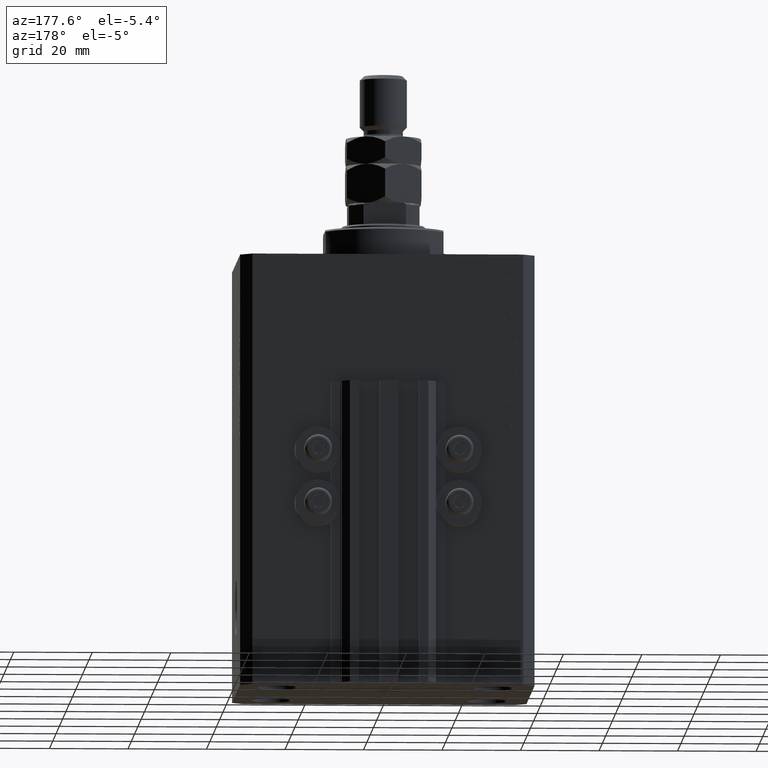
[diagram: clean part render]
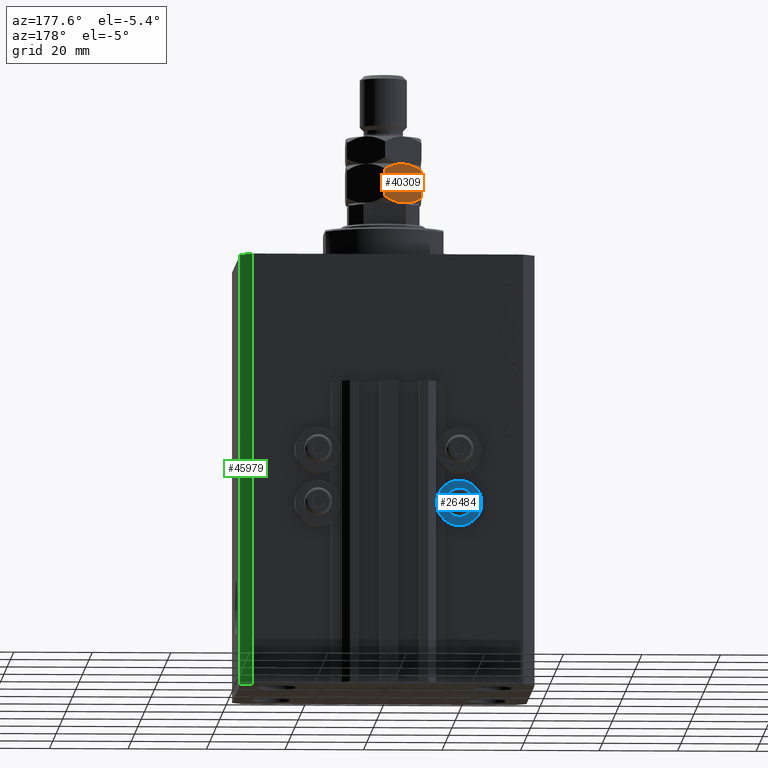
[diagram: same view with three faces highlighted in distinct colors, each labeled with its STEP entity id]
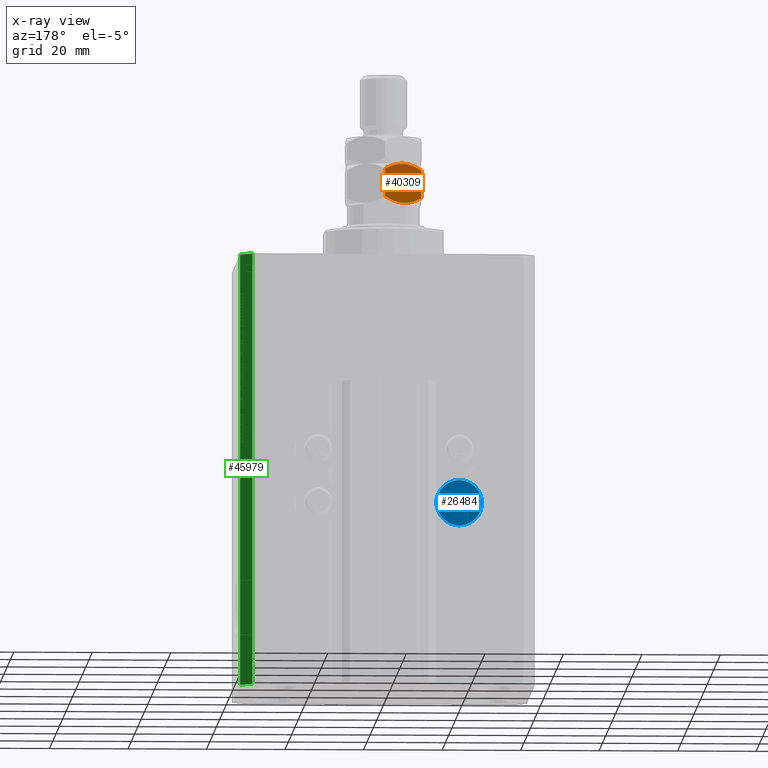
[diagram: x-ray of the same camera — body ghosted, the three highlighted faces saturated]
A machine part, auxiliary view with three faces highlighted in distinct colors.
The next image is the same camera in x-ray (body ghosted, the three faces saturated) — at least one of them is partly hidden behind the body in this view.
Their STEP definitions:

[orange] entity #40309 — the highlighted planar face has unit normal (0.5, -0.866, 0).
#2460 = CARTESIAN_POINT ( 'NONE',  ( -9.500000000000000000, 5.484827557301450440, 1.469655114602887114 ) ) ;
#3102 = CARTESIAN_POINT ( 'NONE',  ( -2.690254945947323506, 9.416435697371474234, 9.716537861568806278 ) ) ;
#3163 = CARTESIAN_POINT ( 'NONE',  ( -3.412354640325339130E-17, 10.96965511460288667, 8.530344885397118659 ) ) ;
#3341 = CARTESIAN_POINT ( 'NONE',  ( -4.333978297711722938, 8.467431577757031036, 9.999999999999998224 ) ) ;
#4573 = VERTEX_POINT ( 'NONE', #45017 ) ;
#5088 = B_SPLINE_CURVE_WITH_KNOTS ( 'NONE', 3,
 ( #36673, #36925, #48022, #3102, #14195, #29273, #3341, #44315 ),
 .UNSPECIFIED., .F., .F.,
 ( 4, 2, 2, 4 ),
 ( 2.544312669947217931E-07, 0.002843014744722341131, 0.004264394901450013070, 0.005685775058177684575 ),
 .UNSPECIFIED. ) ;
#6653 = CARTESIAN_POINT ( 'NONE',  ( -9.500000000000000000, 5.484827557301450440, 8.530344885397113330 ) ) ;
#7068 = CARTESIAN_POINT ( 'NONE',  ( -1.509821400858455398, 10.09795932238899852, 0.6716369694512650534 ) ) ;
#7379 = CARTESIAN_POINT ( 'NONE',  ( -7.990178599141542826, 6.356523349515339483, 9.328363030548731061 ) ) ;
#8091 = VECTOR ( 'NONE', #48327, 1000.000000000000000 ) ;
#8727 = EDGE_CURVE ( 'NONE', #12583, #19426, #5088, .T. ) ;
#9138 = CARTESIAN_POINT ( 'NONE',  ( -4.749999999999995559, 8.227241335952170331, 0.000000000000000000 ) ) ;
#9176 = LINE ( 'NONE', #17730, #8091 ) ;
#9381 = DIRECTION ( 'NONE',  ( -0.000000000000000000, -0.000000000000000000, -1.000000000000000000 ) ) ;
#9828 = ORIENTED_EDGE ( 'NONE', *, *, #41394, .F. ) ;
#10095 = CARTESIAN_POINT ( 'NONE',  ( -5.588267949974988547, 7.743267109381076096, 0.03770576873300184734 ) ) ;
#12146 = FACE_OUTER_BOUND ( 'NONE', #45880, .T. ) ;
#12583 = VERTEX_POINT ( 'NONE', #3163 ) ;
#13374 = CARTESIAN_POINT ( 'NONE',  ( 7.043584025308272669E-16, 10.96965511460288667, 1.469655114602882007 ) ) ;
#13794 = ORIENTED_EDGE ( 'NONE', *, *, #37583, .F. ) ;
#14195 = CARTESIAN_POINT ( 'NONE',  ( -3.091726368128223879, 9.184646063703393537, 9.820258145287965590 ) ) ;
#14386 = VERTEX_POINT ( 'NONE', #45985 ) ;
#14774 = CARTESIAN_POINT ( 'NONE',  ( -4.749999999999993783, 8.227241335952166779, 10.00000000000000000 ) ) ;
#15420 = B_SPLINE_CURVE_WITH_KNOTS ( 'NONE', 3,
 ( #2460, #17498, #47618, #28875, #43918, #10095, #25162, #21465 ),
 .UNSPECIFIED., .F., .F.,
 ( 4, 2, 2, 4 ),
 ( 2.544312669946945821E-07, 0.002843014744722347636, 0.004264394901450021744, 0.005685775058177695851 ),
 .UNSPECIFIED. ) ;
#16087 = DIRECTION ( 'NONE',  ( 0.4999999999999995004, -0.8660254037844390407, 0.000000000000000000 ) ) ;
#17498 = CARTESIAN_POINT ( 'NONE',  ( -8.755131854751338594, 5.914877381471542961, 1.039605290432796147 ) ) ;
#17730 = CARTESIAN_POINT ( 'NONE',  ( 0.000000000000000000, 10.96965511460288667, 10.00000000000000000 ) ) ;
#18176 = CARTESIAN_POINT ( 'NONE',  ( -3.923784602134044341, 8.704257018318687145, 8.233160247311796338E-16 ) ) ;
#19426 = VERTEX_POINT ( 'NONE', #43051 ) ;
#19902 = AXIS2_PLACEMENT_3D ( 'NONE', #35119, #16087, #45958 ) ;
#20254 = LINE ( 'NONE', #28635, #28651 ) ;
#21194 = B_SPLINE_CURVE_WITH_KNOTS ( 'NONE', 3,
 ( #14774, #48830, #40473, #7379, #48355, #26137 ),
 .UNSPECIFIED., .F., .F.,
 ( 4, 2, 4 ),
 ( 0.005685775058177684575, 0.008508623398180318459, 0.01133147173818295321 ),
 .UNSPECIFIED. ) ;
#21465 = CARTESIAN_POINT ( 'NONE',  ( -4.749999999999995559, 8.227241335952170331, 0.000000000000000000 ) ) ;
#21648 = CARTESIAN_POINT ( 'NONE',  ( 7.043584025308272669E-16, 10.96965511460288667, 1.469655114602882007 ) ) ;
#21693 = VERTEX_POINT ( 'NONE', #13374 ) ;
#24652 = ORIENTED_EDGE ( 'NONE', *, *, #44057, .F. ) ;
#25162 = CARTESIAN_POINT ( 'NONE',  ( -5.166021702288269957, 7.987051094147307850, 9.131015171401357655E-16 ) ) ;
#26137 = CARTESIAN_POINT ( 'NONE',  ( -9.500000000000000000, 5.484827557301450440, 8.530344885397113330 ) ) ;
#27743 = VERTEX_POINT ( 'NONE', #6653 ) ;
#28635 = CARTESIAN_POINT ( 'NONE',  ( -9.500000000000000000, 5.484827557301449552, 10.00000000000000000 ) ) ;
#28651 = VECTOR ( 'NONE', #9381, 1000.000000000000000 ) ;
#28875 = CARTESIAN_POINT ( 'NONE',  ( -6.809745054052670277, 7.038046974532860212, 0.2834621384311906689 ) ) ;
#29273 = CARTESIAN_POINT ( 'NONE',  ( -3.911732050025008789, 8.711215562523269895, 9.962294231267003752 ) ) ;
#33248 = CARTESIAN_POINT ( 'NONE',  ( -3.111617971331824162, 9.173161641239182984, 0.1458756157754679816 ) ) ;
#35119 = CARTESIAN_POINT ( 'NONE',  ( 0.000000000000000000, 10.96965511460288667, 10.00000000000000000 ) ) ;
#35737 = ORIENTED_EDGE ( 'NONE', *, *, #36526, .F. ) ;
#36526 = EDGE_CURVE ( 'NONE', #14386, #21693, #46815, .T. ) ;
#36673 = CARTESIAN_POINT ( 'NONE',  ( -3.412354640325339130E-17, 10.96965511460288667, 8.530344885397118659 ) ) ;
#36925 = CARTESIAN_POINT ( 'NONE',  ( -0.7448681452486597410, 10.53960529043279770, 8.960394709567207627 ) ) ;
#37583 = EDGE_CURVE ( 'NONE', #19426, #27743, #21194, .T. ) ;
#38081 = PLANE ( 'NONE',  #19902 ) ;
#40309 = ADVANCED_FACE ( 'NONE', ( #12146 ), #38081, .F. ) ;
#40425 = EDGE_CURVE ( 'NONE', #12583, #21693, #9176, .T. ) ;
#40473 = CARTESIAN_POINT ( 'NONE',  ( -6.388382028668171841, 7.281321030665156790, 9.854124384224531852 ) ) ;
#41394 = EDGE_CURVE ( 'NONE', #27743, #4573, #20254, .T. ) ;
#43051 = CARTESIAN_POINT ( 'NONE',  ( -4.749999999999993783, 8.227241335952166779, 10.00000000000000000 ) ) ;
#43200 = CARTESIAN_POINT ( 'NONE',  ( -0.7440058743609621050, 10.54010312276192174, 1.040103122761827148 ) ) ;
#43290 = ORIENTED_EDGE ( 'NONE', *, *, #40425, .T. ) ;
#43918 = CARTESIAN_POINT ( 'NONE',  ( -6.408273631871772125, 7.269836608200945349, 0.1797418547120365750 ) ) ;
#44057 = EDGE_CURVE ( 'NONE', #4573, #14386, #15420, .T. ) ;
#44315 = CARTESIAN_POINT ( 'NONE',  ( -4.749999999999993783, 8.227241335952166779, 10.00000000000000000 ) ) ;
#45017 = CARTESIAN_POINT ( 'NONE',  ( -9.500000000000000000, 5.484827557301450440, 1.469655114602887114 ) ) ;
#45880 = EDGE_LOOP ( 'NONE', ( #24652, #9828, #13794, #47909, #43290, #35737 ) ) ;
#45958 = DIRECTION ( 'NONE',  ( 0.8660254037844389297, 0.4999999999999994449, 0.000000000000000000 ) ) ;
#45985 = CARTESIAN_POINT ( 'NONE',  ( -4.749999999999995559, 8.227241335952170331, 0.000000000000000000 ) ) ;
#46815 = B_SPLINE_CURVE_WITH_KNOTS ( 'NONE', 3,
 ( #9138, #18176, #33248, #7068, #43200, #21648 ),
 .UNSPECIFIED., .F., .F.,
 ( 4, 2, 4 ),
 ( 0.005685775058177695851, 0.008508623398180325398, 0.01133147173818295494 ),
 .UNSPECIFIED. ) ;
#47618 = CARTESIAN_POINT ( 'NONE',  ( -7.993405681187618406, 6.354660192827338960, 0.6741748824712797683 ) ) ;
#47909 = ORIENTED_EDGE ( 'NONE', *, *, #8727, .F. ) ;
#48022 = CARTESIAN_POINT ( 'NONE',  ( -1.506594318812380706, 10.09982247907699993, 9.325825117528726338 ) ) ;
#48327 = DIRECTION ( 'NONE',  ( -0.000000000000000000, -0.000000000000000000, -1.000000000000000000 ) ) ;
#48355 = CARTESIAN_POINT ( 'NONE',  ( -8.755994125639032788, 5.914379549142415371, 8.959896877238170632 ) ) ;
#48830 = CARTESIAN_POINT ( 'NONE',  ( -5.576215397865946777, 7.750225653585649077, 10.00000000000000000 ) ) ;

[blue] entity #26484 — the highlighted planar face has unit normal (0, -1, 0).
#474 = DIRECTION ( 'NONE',  ( -0.000000000000000000, -1.000000000000000000, -0.000000000000000000 ) ) ;
#2263 = ORIENTED_EDGE ( 'NONE', *, *, #38980, .F. ) ;
#5761 = FACE_BOUND ( 'NONE', #7604, .T. ) ;
#6604 = CARTESIAN_POINT ( 'NONE',  ( -18.00000000000000355, 32.49999999996100541, -69.79999999999999716 ) ) ;
#7604 = EDGE_LOOP ( 'NONE', ( #13734, #38429 ) ) ;
#9085 = AXIS2_PLACEMENT_3D ( 'NONE', #27497, #12673, #31212 ) ;
#9989 = CARTESIAN_POINT ( 'NONE',  ( -18.00000000000000355, 32.49999999996100541, -64.00000000000000000 ) ) ;
#11579 = EDGE_LOOP ( 'NONE', ( #35471, #2263 ) ) ;
#12673 = DIRECTION ( 'NONE',  ( 0.000000000000000000, -1.000000000000000000, 0.000000000000000000 ) ) ;
#13335 = EDGE_CURVE ( 'NONE', #46942, #18407, #37145, .T. ) ;
#13734 = ORIENTED_EDGE ( 'NONE', *, *, #20592, .T. ) ;
#14179 = CARTESIAN_POINT ( 'NONE',  ( -18.00000000000000355, 32.49999999996100541, -62.00000000000000000 ) ) ;
#15336 = DIRECTION ( 'NONE',  ( -0.000000000000000000, -1.000000000000000000, -0.000000000000000000 ) ) ;
#18407 = VERTEX_POINT ( 'NONE', #14179 ) ;
#20592 = EDGE_CURVE ( 'NONE', #18407, #46942, #37800, .T. ) ;
#21867 = CARTESIAN_POINT ( 'NONE',  ( -18.00000000000000355, 32.49999999996100541, -58.20000000000000284 ) ) ;
#22242 = DIRECTION ( 'NONE',  ( 0.000000000000000000, 0.000000000000000000, -1.000000000000000000 ) ) ;
#23291 = VERTEX_POINT ( 'NONE', #6604 ) ;
#24170 = CIRCLE ( 'NONE', #36778, 5.799999999999999822 ) ;
#24527 = FACE_OUTER_BOUND ( 'NONE', #11579, .T. ) ;
#25057 = DIRECTION ( 'NONE',  ( 0.000000000000000000, 0.000000000000000000, -1.000000000000000000 ) ) ;
#25408 = CIRCLE ( 'NONE', #30911, 5.799999999999999822 ) ;
#25782 = DIRECTION ( 'NONE',  ( -0.000000000000000000, -1.000000000000000000, -0.000000000000000000 ) ) ;
#26175 = DIRECTION ( 'NONE',  ( -0.000000000000000000, -1.000000000000000000, -0.000000000000000000 ) ) ;
#26484 = ADVANCED_FACE ( 'NONE', ( #5761, #24527 ), #31450, .F. ) ;
#26874 = AXIS2_PLACEMENT_3D ( 'NONE', #9989, #25782, #25057 ) ;
#27497 = CARTESIAN_POINT ( 'NONE',  ( -12.20000000000000284, 32.49999999996100541, -64.00000000000000000 ) ) ;
#29265 = CARTESIAN_POINT ( 'NONE',  ( -18.00000000000000355, 32.49999999996100541, -64.00000000000000000 ) ) ;
#29730 = EDGE_CURVE ( 'NONE', #23291, #39128, #24170, .T. ) ;
#30343 = CARTESIAN_POINT ( 'NONE',  ( -18.00000000000000355, 32.49999999996100541, -64.00000000000000000 ) ) ;
#30911 = AXIS2_PLACEMENT_3D ( 'NONE', #29265, #15336, #40612 ) ;
#31212 = DIRECTION ( 'NONE',  ( 0.000000000000000000, 0.000000000000000000, 1.000000000000000000 ) ) ;
#31450 = PLANE ( 'NONE',  #9085 ) ;
#32930 = CARTESIAN_POINT ( 'NONE',  ( -18.00000000000000355, 32.49999999996100541, -66.00000000000000000 ) ) ;
#35471 = ORIENTED_EDGE ( 'NONE', *, *, #29730, .F. ) ;
#36778 = AXIS2_PLACEMENT_3D ( 'NONE', #30343, #474, #37758 ) ;
#37145 = CIRCLE ( 'NONE', #26874, 2.000000000000001776 ) ;
#37758 = DIRECTION ( 'NONE',  ( 0.000000000000000000, 0.000000000000000000, -1.000000000000000000 ) ) ;
#37800 = CIRCLE ( 'NONE', #45673, 2.000000000000001776 ) ;
#38429 = ORIENTED_EDGE ( 'NONE', *, *, #13335, .T. ) ;
#38980 = EDGE_CURVE ( 'NONE', #39128, #23291, #25408, .T. ) ;
#39128 = VERTEX_POINT ( 'NONE', #21867 ) ;
#40612 = DIRECTION ( 'NONE',  ( 0.000000000000000000, 0.000000000000000000, -1.000000000000000000 ) ) ;
#44694 = CARTESIAN_POINT ( 'NONE',  ( -18.00000000000000355, 32.49999999996100541, -64.00000000000000000 ) ) ;
#45673 = AXIS2_PLACEMENT_3D ( 'NONE', #44694, #26175, #22242 ) ;
#46942 = VERTEX_POINT ( 'NONE', #32930 ) ;

[green] entity #45979 — the highlighted planar face has unit normal (0.7071, 0.7071, 0).
#338 = VECTOR ( 'NONE', #36975, 1000.000000000000000 ) ;
#381 = VECTOR ( 'NONE', #42052, 1000.000000000000000 ) ;
#1459 = EDGE_CURVE ( 'NONE', #40450, #13528, #39791, .T. ) ;
#1949 = CARTESIAN_POINT ( 'NONE',  ( 34.50000000000056843, 27.50000000000000000, 0.000000000000000000 ) ) ;
#2185 = VECTOR ( 'NONE', #28201, 1000.000000000000114 ) ;
#4217 = PLANE ( 'NONE',  #9891 ) ;
#7352 = CARTESIAN_POINT ( 'NONE',  ( 37.50000000000051870, 24.49999999999995381, -110.0000000000000000 ) ) ;
#9891 = AXIS2_PLACEMENT_3D ( 'NONE', #15074, #10648, #11371 ) ;
#10648 = DIRECTION ( 'NONE',  ( 0.7071067811865585639, 0.7071067811865365815, -0.000000000000000000 ) ) ;
#11371 = DIRECTION ( 'NONE',  ( -0.7071067811865364705, 0.7071067811865584529, 0.000000000000000000 ) ) ;
#11539 = VERTEX_POINT ( 'NONE', #1949 ) ;
#13528 = VERTEX_POINT ( 'NONE', #19337 ) ;
#14729 = LINE ( 'NONE', #29328, #338 ) ;
#15074 = CARTESIAN_POINT ( 'NONE',  ( 37.50000000000051870, 24.49999999999995381, -110.0000000000000000 ) ) ;
#15941 = ORIENTED_EDGE ( 'NONE', *, *, #23328, .T. ) ;
#16042 = ORIENTED_EDGE ( 'NONE', *, *, #41247, .F. ) ;
#19337 = CARTESIAN_POINT ( 'NONE',  ( 34.50000000000056843, 27.50000000000000000, -110.0000000000000000 ) ) ;
#19945 = ORIENTED_EDGE ( 'NONE', *, *, #1459, .T. ) ;
#23283 = VERTEX_POINT ( 'NONE', #45085 ) ;
#23328 = EDGE_CURVE ( 'NONE', #13528, #11539, #14729, .T. ) ;
#24379 = ORIENTED_EDGE ( 'NONE', *, *, #25589, .F. ) ;
#25589 = EDGE_CURVE ( 'NONE', #40450, #23283, #38358, .T. ) ;
#28201 = DIRECTION ( 'NONE',  ( -0.7071067811865364705, 0.7071067811865584529, 0.000000000000000000 ) ) ;
#29328 = CARTESIAN_POINT ( 'NONE',  ( 34.50000000000056843, 27.50000000000000000, -110.0000000000000000 ) ) ;
#30214 = CARTESIAN_POINT ( 'NONE',  ( 37.50000000000051870, 24.49999999999995381, -110.0000000000000000 ) ) ;
#31014 = VECTOR ( 'NONE', #36829, 1000.000000000000114 ) ;
#32887 = CARTESIAN_POINT ( 'NONE',  ( 37.50000000000051870, 24.49999999999995381, 0.000000000000000000 ) ) ;
#33993 = EDGE_LOOP ( 'NONE', ( #16042, #24379, #19945, #15941 ) ) ;
#36829 = DIRECTION ( 'NONE',  ( -0.7071067811865364705, 0.7071067811865584529, 0.000000000000000000 ) ) ;
#36975 = DIRECTION ( 'NONE',  ( 0.000000000000000000, 0.000000000000000000, 1.000000000000000000 ) ) ;
#38358 = LINE ( 'NONE', #30214, #381 ) ;
#39791 = LINE ( 'NONE', #46937, #2185 ) ;
#40450 = VERTEX_POINT ( 'NONE', #7352 ) ;
#41247 = EDGE_CURVE ( 'NONE', #23283, #11539, #48409, .T. ) ;
#42052 = DIRECTION ( 'NONE',  ( 0.000000000000000000, 0.000000000000000000, 1.000000000000000000 ) ) ;
#45085 = CARTESIAN_POINT ( 'NONE',  ( 37.50000000000051870, 24.49999999999995381, 0.000000000000000000 ) ) ;
#45190 = FACE_OUTER_BOUND ( 'NONE', #33993, .T. ) ;
#45979 = ADVANCED_FACE ( 'NONE', ( #45190 ), #4217, .T. ) ;
#46937 = CARTESIAN_POINT ( 'NONE',  ( 37.50000000000051870, 24.49999999999995381, -110.0000000000000000 ) ) ;
#48409 = LINE ( 'NONE', #32887, #31014 ) ;